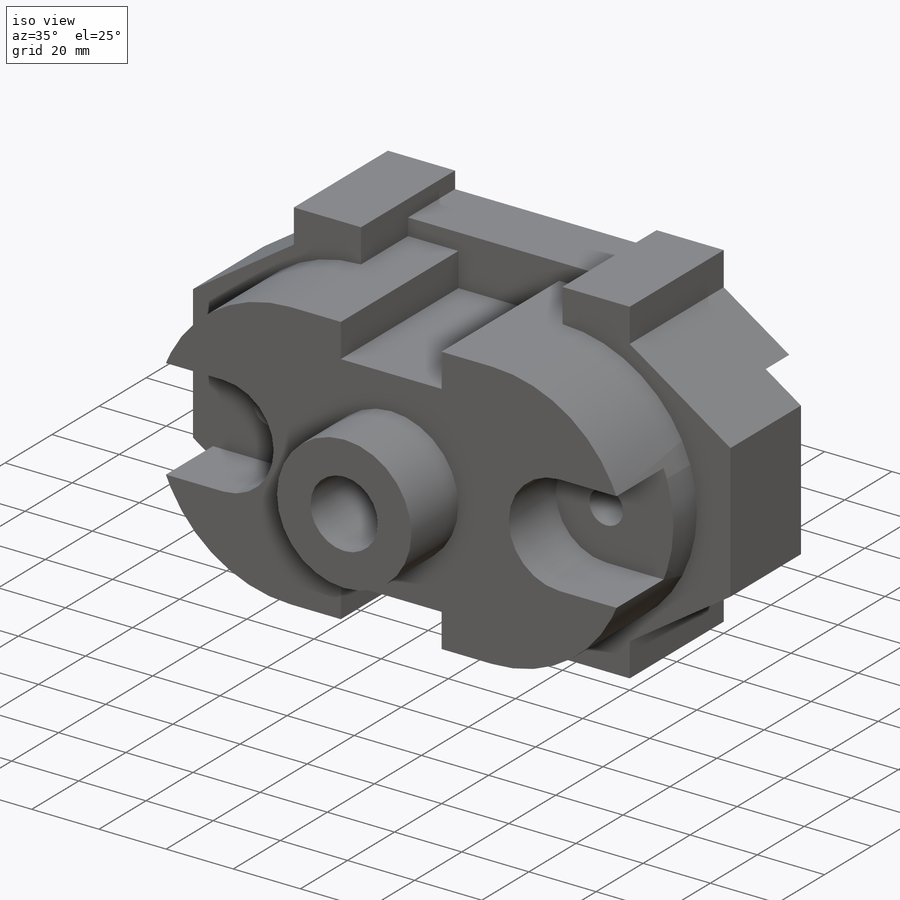
[diagram: iso view]
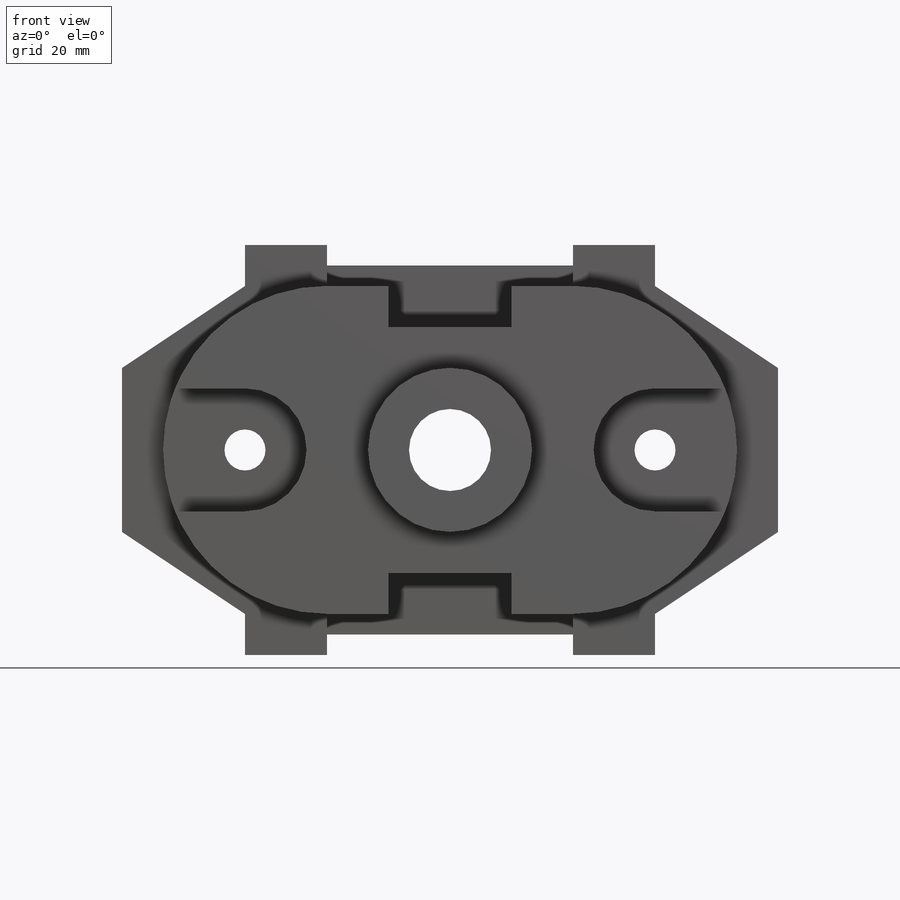
[diagram: front view]
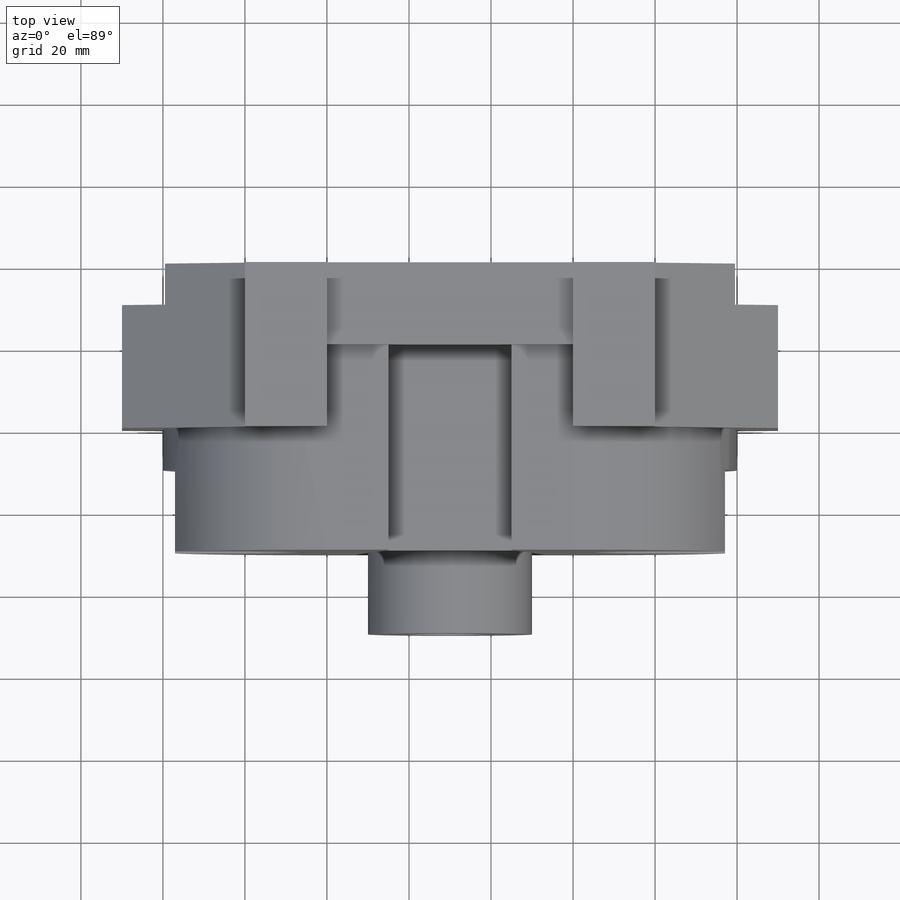
[diagram: top view]
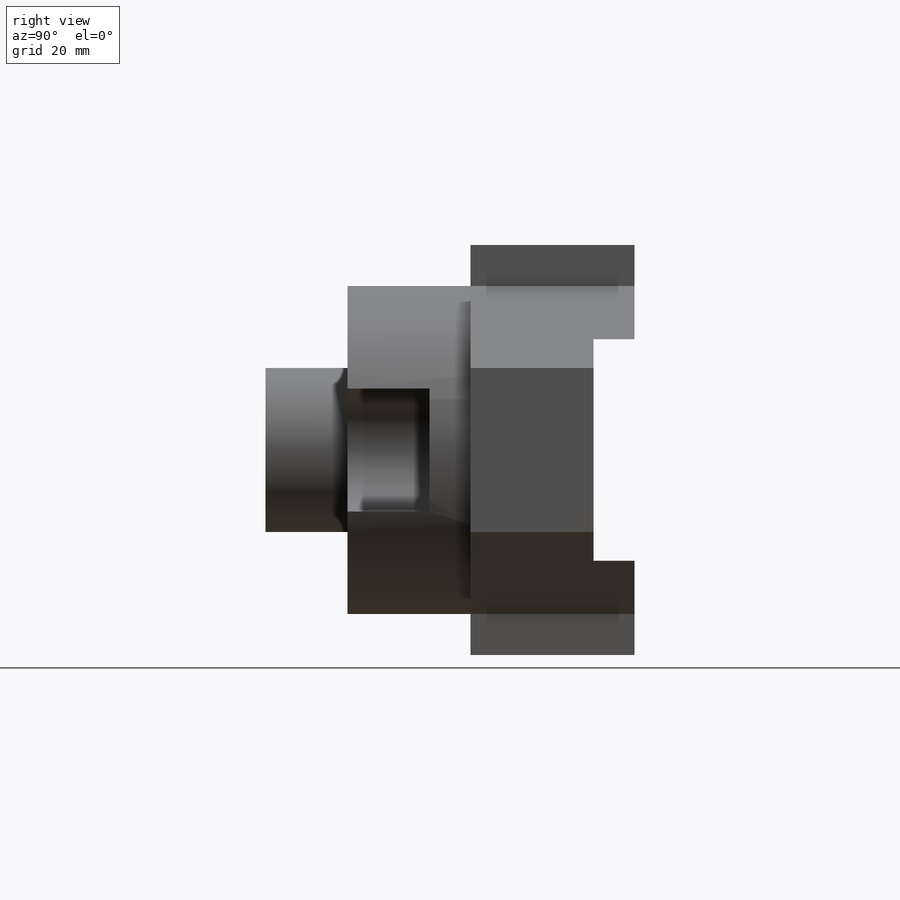
[diagram: right view]
SOLIDWORKS PART (.sldprt)
format: sldprt  version: not decoded by parser v0  size: 388,608 bytes
history: native  units: mm
features: sketch x9, cut_extrude x6, extrude x3, material x1 (+13 scaffold rows collapsed)
feature tree (32):
  scaffold x13  (default folders/planes/origin — collapsed)
  material  "Material <not specified>"
  sketch  "Sketch1"  dims[D1=20.0mm D2=20.0mm D3=5.0mm D4=5.0mm D5=60.0mm D6=10.0mm D7=10.0mm D8=30.0mm D9=20.0mm D10=30.0mm D11=20.0mm D12=40.0mm D13=40.0mm D14=20.0mm D15=30.0mm D16=10.0mm D17=20.0mm D18=5.0mm D19=30.0mm D20=20.0mm D21=10.0mm D22=20.0mm D23=5.0mm D24=~54.113003mm]
  extrude  "Boss-Extrude1"  Depth=40mm
  sketch  "Sketch2"  dims[c1.D1=40.0mm c1.D2=40.0mm c1.D7=40.0mm c1.D3=5.0mm c1.D4=5.0mm c1.D5=5.0mm c1.D6=5.0mm c2.D7=15.0mm c2.D8=15.0mm c2.D9=30.0mm c2.D10=10.0mm c2.D11=50.0mm c2.D12=15.0mm c2.D13=15.0mm c2.D14=10.0mm c2.D15=30.0mm]
  extrude  "Boss-Extrude2"  Depth=30mm
  sketch  "Sketch3"  dims[D1=40.0mm D2=80.0mm D3=50.0mm]
  extrude  "Boss-Extrude3"  Depth=20mm
  sketch  "Sketch4"  dims[D1=20.0mm]
  cut_extrude  "Cut-Extrude1"  Depth=185mm
  sketch  "Sketch5"  dims[D1=10.0mm D2=10.0mm D3=30.0mm D4=30.0mm D5=50.0mm D6=50.0mm]
  cut_extrude  "Cut-Extrude2"  Depth=185mm
  sketch  "Sketch6"  dims[D1=15.0mm D2=15.0mm D3=~17.080992mm]
  cut_extrude  "Cut-Extrude3"  Depth=20mm
  sketch  "Sketch7"
  cut_extrude  "Cut-Extrude4"  Depth=20mm
  sketch  "Sketch8"
  cut_extrude  "Cut-Extrude5"  Depth=20mm
  sketch  "Sketch9"  dims[D1=7.0mm D2=7.0mm]
  cut_extrude  "Cut-Extrude7"  Depth=10mm
decode coverage: 16 of 18 modeling features carry decoded parameters
note: ~ marks probable driven/reference dimensions
note: suppression state not decoded; provenance and decode notes live in map.json
